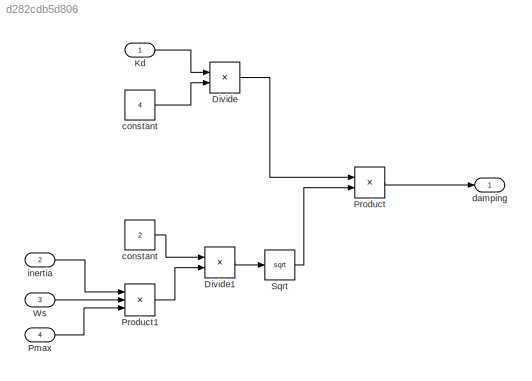
MODEL slx_d282cdb5d806
KIND model
BLOCK [Product] Divide
  InputSameDT = off
  Inputs = */
  OutDataTypeStr = Inherit: Inherit via internal rule
  Ports = [2, 1]
  RndMeth = Floor
  SaturateOnIntegerOverflow = off
BLOCK [Product] Divide1
  InputSameDT = off
  Inputs = */
  OutDataTypeStr = Inherit: Inherit via internal rule
  Ports = [2, 1]
  RndMeth = Floor
  SaturateOnIntegerOverflow = off
BLOCK [Inport] Kd
  IconDisplay = Port number
BLOCK [Inport] Pmax
  IconDisplay = Port number
  Port = 4
BLOCK [Product] Product
  InputSameDT = off
  OutDataTypeStr = Inherit: Inherit via internal rule
  Ports = [2, 1]
  RndMeth = Floor
  SaturateOnIntegerOverflow = off
BLOCK [Product] Product1
  InputSameDT = off
  Inputs = 3
  OutDataTypeStr = Inherit: Inherit via internal rule
  Ports = [3, 1]
  RndMeth = Floor
  SaturateOnIntegerOverflow = off
BLOCK [Sqrt] Sqrt
BLOCK [Inport] Ws
  IconDisplay = Port number
  Port = 3
BLOCK [Constant] constant
  Value = 2
  VectorParams1D = off
BLOCK [Constant] constant 
  Value = 4
  VectorParams1D = off
BLOCK [Outport] damping
  IconDisplay = Port number
BLOCK [Inport] inertia 
  IconDisplay = Port number
  Port = 2
LINE Divide1:1 -> Sqrt:1
LINE Divide:1 -> Product:1
LINE Kd:1 -> Divide:1
LINE Pmax:1 -> Product1:3
LINE Product1:1 -> Divide1:2
LINE Product:1 -> damping:1
LINE Sqrt:1 -> Product:2
LINE Ws:1 -> Product1:2
LINE constant :1 -> Divide:2
LINE constant:1 -> Divide1:1
LINE inertia :1 -> Product1:1
